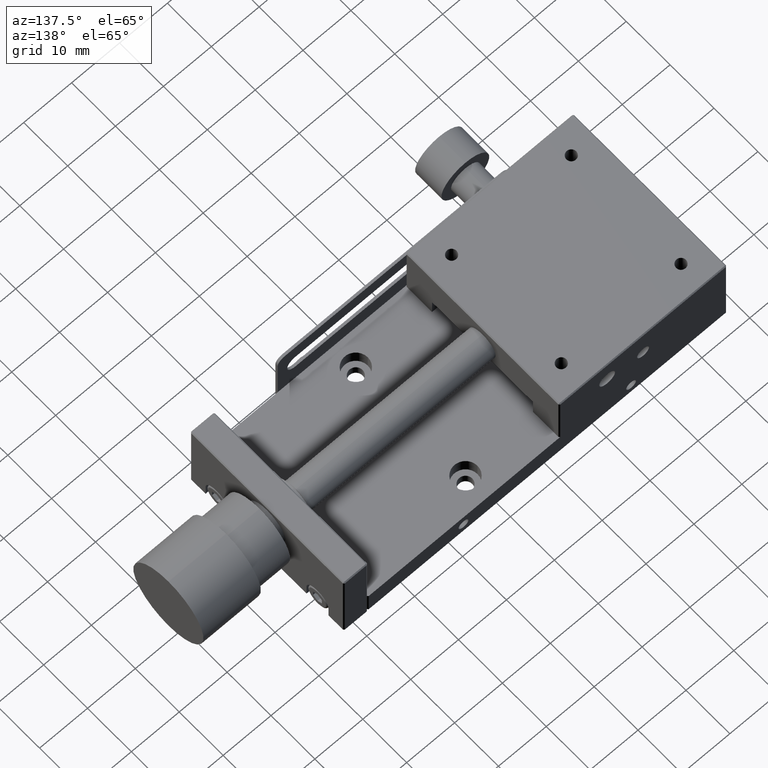
[diagram: clean part render]
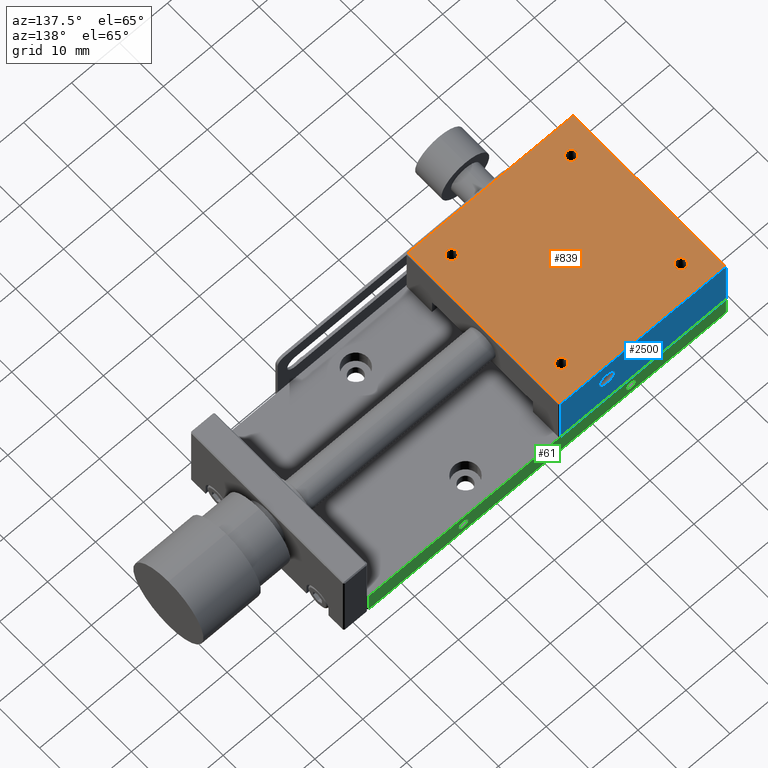
[diagram: same view with three faces highlighted in distinct colors, each labeled with its STEP entity id]
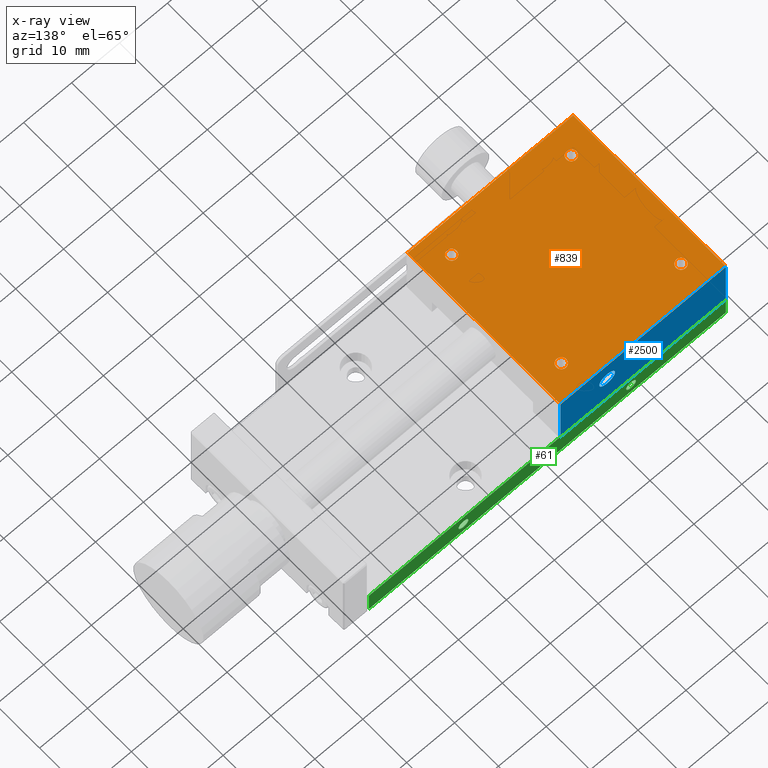
[diagram: x-ray of the same camera — body ghosted, the three highlighted faces saturated]
A machine part, auxiliary view with three faces highlighted in distinct colors.
The next image is the same camera in x-ray (body ghosted, the three faces saturated) — at least one of them is partly hidden behind the body in this view.
Their STEP definitions:

[orange] entity #839 — the highlighted planar face has unit normal (0, 0, -1).
#39 = VERTEX_POINT ( 'NONE', #10684 ) ;
#43 = CARTESIAN_POINT ( 'NONE',  ( -33.52500000000000600, 12.50000000000000000, 17.00000000000000000 ) ) ;
#44 = ORIENTED_EDGE ( 'NONE', *, *, #9098, .T. ) ;
#104 = DIRECTION ( 'NONE',  ( 1.000000000000000000, 0.0000000000000000000, 0.0000000000000000000 ) ) ;
#105 = EDGE_CURVE ( 'NONE', #3207, #4197, #10710, .T. ) ;
#245 = VECTOR ( 'NONE', #4122, 1000.000000000000000 ) ;
#258 = CIRCLE ( 'NONE', #4759, 1.024999999999999000 ) ;
#407 = CARTESIAN_POINT ( 'NONE',  ( -2.699999999962800600, -17.29999999997519900, 16.99999999997520200 ) ) ;
#465 = DIRECTION ( 'NONE',  ( 1.000000000000000000, 0.0000000000000000000, 0.0000000000000000000 ) ) ;
#702 = VERTEX_POINT ( 'NONE', #7912 ) ;
#812 = DIRECTION ( 'NONE',  ( 0.0000000000000000000, 0.0000000000000000000, -1.000000000000000000 ) ) ;
#839 = ADVANCED_FACE ( 'NONE', ( #5214, #4692, #9295, #2403, #6986 ), #5443, .F. ) ;
#955 = DIRECTION ( 'NONE',  ( 1.000000000000000000, 0.0000000000000000000, 0.0000000000000000000 ) ) ;
#984 = CARTESIAN_POINT ( 'NONE',  ( -7.500000000000000000, -12.50000000000000000, 17.00000000000000000 ) ) ;
#1103 = ORIENTED_EDGE ( 'NONE', *, *, #105, .F. ) ;
#1456 = VECTOR ( 'NONE', #8667, 1000.000000000000000 ) ;
#1596 = CARTESIAN_POINT ( 'NONE',  ( -32.50000000000000000, 12.50000000000000000, 17.00000000000000000 ) ) ;
#1675 = DIRECTION ( 'NONE',  ( 1.000000000000000000, 0.0000000000000000000, 0.0000000000000000000 ) ) ;
#1771 = EDGE_CURVE ( 'NONE', #39, #2007, #6206, .T. ) ;
#1888 = CARTESIAN_POINT ( 'NONE',  ( -2.700000000000000200, -17.30000000000000100, 17.00000000000000000 ) ) ;
#1923 = EDGE_LOOP ( 'NONE', ( #8281, #44, #7017, #2214 ) ) ;
#2007 = VERTEX_POINT ( 'NONE', #9077 ) ;
#2055 = EDGE_CURVE ( 'NONE', #2007, #39, #3653, .T. ) ;
#2163 = EDGE_LOOP ( 'NONE', ( #2681, #9966 ) ) ;
#2214 = ORIENTED_EDGE ( 'NONE', *, *, #7979, .T. ) ;
#2324 = AXIS2_PLACEMENT_3D ( 'NONE', #10632, #8962, #2841 ) ;
#2346 = EDGE_LOOP ( 'NONE', ( #3106, #9041 ) ) ;
#2403 = FACE_BOUND ( 'NONE', #2163, .T. ) ;
#2445 = DIRECTION ( 'NONE',  ( 0.0000000000000000000, -0.0000000000000000000, 1.000000000000000000 ) ) ;
#2462 = DIRECTION ( 'NONE',  ( 1.000000000000000000, 0.0000000000000000000, 0.0000000000000000000 ) ) ;
#2643 = CARTESIAN_POINT ( 'NONE',  ( -20.00000000000000000, 17.30000000000000100, 17.00000000000000000 ) ) ;
#2681 = ORIENTED_EDGE ( 'NONE', *, *, #2864, .F. ) ;
#2841 = DIRECTION ( 'NONE',  ( 1.000000000000000000, 0.0000000000000000000, 0.0000000000000000000 ) ) ;
#2864 = EDGE_CURVE ( 'NONE', #10460, #8639, #8587, .T. ) ;
#2918 = CARTESIAN_POINT ( 'NONE',  ( -2.699999999962800600, 17.29999999997519900, 16.99999999997520200 ) ) ;
#3023 = CARTESIAN_POINT ( 'NONE',  ( -37.30000000003720800, -17.29999999997519900, 16.99999999997520200 ) ) ;
#3068 = EDGE_CURVE ( 'NONE', #3648, #7547, #6788, .T. ) ;
#3106 = ORIENTED_EDGE ( 'NONE', *, *, #2055, .F. ) ;
#3207 = VERTEX_POINT ( 'NONE', #3694 ) ;
#3302 = DIRECTION ( 'NONE',  ( 1.000000000000000000, 0.0000000000000000000, 0.0000000000000000000 ) ) ;
#3315 = CARTESIAN_POINT ( 'NONE',  ( -7.500000000000000000, 12.50000000000000000, 17.00000000000000000 ) ) ;
#3328 = DIRECTION ( 'NONE',  ( 0.0000000000000000000, -0.0000000000000000000, 1.000000000000000000 ) ) ;
#3405 = DIRECTION ( 'NONE',  ( 0.0000000000000000000, -1.000000000000000000, 0.0000000000000000000 ) ) ;
#3648 = VERTEX_POINT ( 'NONE', #407 ) ;
#3650 = CARTESIAN_POINT ( 'NONE',  ( -37.30000000000620000, 17.29999999999999700, 16.99999999999380100 ) ) ;
#3653 = CIRCLE ( 'NONE', #2324, 1.024999999999999000 ) ;
#3694 = CARTESIAN_POINT ( 'NONE',  ( -31.47499999999999400, -12.50000000000000000, 17.00000000000000000 ) ) ;
#3799 = EDGE_CURVE ( 'NONE', #8533, #702, #258, .T. ) ;
#4022 = CARTESIAN_POINT ( 'NONE',  ( -8.524999999999998600, -12.50000000000000000, 17.00000000000000000 ) ) ;
#4057 = DIRECTION ( 'NONE',  ( -1.000000000000000000, 0.0000000000000000000, 0.0000000000000000000 ) ) ;
#4122 = DIRECTION ( 'NONE',  ( -1.000000000000000000, 0.0000000000000000000, 0.0000000000000000000 ) ) ;
#4197 = VERTEX_POINT ( 'NONE', #9925 ) ;
#4267 = CARTESIAN_POINT ( 'NONE',  ( -32.50000000000000000, 12.50000000000000000, 17.00000000000000000 ) ) ;
#4459 = VECTOR ( 'NONE', #6804, 1000.000000000000000 ) ;
#4692 = FACE_BOUND ( 'NONE', #8797, .T. ) ;
#4694 = VERTEX_POINT ( 'NONE', #2918 ) ;
#4759 = AXIS2_PLACEMENT_3D ( 'NONE', #984, #6055, #104 ) ;
#5070 = CIRCLE ( 'NONE', #10116, 1.025000000000005000 ) ;
#5214 = FACE_BOUND ( 'NONE', #6010, .T. ) ;
#5443 = PLANE ( 'NONE',  #8483 ) ;
#5540 = DIRECTION ( 'NONE',  ( 0.0000000000000000000, -0.0000000000000000000, 1.000000000000000000 ) ) ;
#5717 = AXIS2_PLACEMENT_3D ( 'NONE', #10675, #5540, #465 ) ;
#5915 = CARTESIAN_POINT ( 'NONE',  ( -2.700000000000000200, 0.0000000000000000000, 17.00000000000000000 ) ) ;
#6010 = EDGE_LOOP ( 'NONE', ( #9564, #8752 ) ) ;
#6055 = DIRECTION ( 'NONE',  ( 0.0000000000000000000, -0.0000000000000000000, 1.000000000000000000 ) ) ;
#6206 = CIRCLE ( 'NONE', #7703, 1.024999999999999000 ) ;
#6211 = AXIS2_PLACEMENT_3D ( 'NONE', #4267, #8602, #1675 ) ;
#6696 = CARTESIAN_POINT ( 'NONE',  ( -31.47499999999999400, 12.50000000000000000, 17.00000000000000000 ) ) ;
#6788 = LINE ( 'NONE', #7634, #245 ) ;
#6804 = DIRECTION ( 'NONE',  ( 0.0000000000000000000, 1.000000000000000000, 0.0000000000000000000 ) ) ;
#6851 = CIRCLE ( 'NONE', #5717, 1.024999999999999000 ) ;
#6986 = FACE_OUTER_BOUND ( 'NONE', #1923, .T. ) ;
#7017 = ORIENTED_EDGE ( 'NONE', *, *, #7255, .F. ) ;
#7033 = DIRECTION ( 'NONE',  ( 0.0000000000000000000, -0.0000000000000000000, 1.000000000000000000 ) ) ;
#7255 = EDGE_CURVE ( 'NONE', #9712, #4694, #8060, .T. ) ;
#7341 = LINE ( 'NONE', #7733, #9354 ) ;
#7547 = VERTEX_POINT ( 'NONE', #3023 ) ;
#7613 = AXIS2_PLACEMENT_3D ( 'NONE', #9866, #7033, #3302 ) ;
#7634 = CARTESIAN_POINT ( 'NONE',  ( -20.00000000000000000, -17.30000000000000100, 17.00000000000000000 ) ) ;
#7655 = DIRECTION ( 'NONE',  ( 0.0000000000000000000, -0.0000000000000000000, 1.000000000000000000 ) ) ;
#7703 = AXIS2_PLACEMENT_3D ( 'NONE', #3315, #2445, #955 ) ;
#7733 = CARTESIAN_POINT ( 'NONE',  ( -37.29999999999999700, 0.0000000000000000000, 17.00000000000000000 ) ) ;
#7912 = CARTESIAN_POINT ( 'NONE',  ( -6.475000000000000500, -12.50000000000000000, 17.00000000000000000 ) ) ;
#7914 = EDGE_CURVE ( 'NONE', #4197, #3207, #10385, .T. ) ;
#7979 = EDGE_CURVE ( 'NONE', #9712, #7547, #7341, .T. ) ;
#8060 = LINE ( 'NONE', #2643, #1456 ) ;
#8281 = ORIENTED_EDGE ( 'NONE', *, *, #3068, .F. ) ;
#8483 = AXIS2_PLACEMENT_3D ( 'NONE', #1888, #812, #4057 ) ;
#8514 = CARTESIAN_POINT ( 'NONE',  ( -32.50000000000000000, -12.50000000000000000, 17.00000000000000000 ) ) ;
#8533 = VERTEX_POINT ( 'NONE', #4022 ) ;
#8587 = CIRCLE ( 'NONE', #6211, 1.025000000000005000 ) ;
#8602 = DIRECTION ( 'NONE',  ( 0.0000000000000000000, -0.0000000000000000000, 1.000000000000000000 ) ) ;
#8639 = VERTEX_POINT ( 'NONE', #43 ) ;
#8667 = DIRECTION ( 'NONE',  ( 1.000000000000000000, -0.0000000000000000000, -0.0000000000000000000 ) ) ;
#8752 = ORIENTED_EDGE ( 'NONE', *, *, #3799, .F. ) ;
#8793 = AXIS2_PLACEMENT_3D ( 'NONE', #8514, #3328, #9365 ) ;
#8797 = EDGE_LOOP ( 'NONE', ( #1103, #9856 ) ) ;
#8962 = DIRECTION ( 'NONE',  ( 0.0000000000000000000, -0.0000000000000000000, 1.000000000000000000 ) ) ;
#9041 = ORIENTED_EDGE ( 'NONE', *, *, #1771, .F. ) ;
#9077 = CARTESIAN_POINT ( 'NONE',  ( -6.475000000000000500, 12.50000000000000000, 17.00000000000000000 ) ) ;
#9081 = LINE ( 'NONE', #5915, #4459 ) ;
#9098 = EDGE_CURVE ( 'NONE', #3648, #4694, #9081, .T. ) ;
#9295 = FACE_BOUND ( 'NONE', #2346, .T. ) ;
#9354 = VECTOR ( 'NONE', #3405, 1000.000000000000000 ) ;
#9365 = DIRECTION ( 'NONE',  ( 1.000000000000000000, 0.0000000000000000000, 0.0000000000000000000 ) ) ;
#9564 = ORIENTED_EDGE ( 'NONE', *, *, #9793, .F. ) ;
#9712 = VERTEX_POINT ( 'NONE', #3650 ) ;
#9793 = EDGE_CURVE ( 'NONE', #702, #8533, #6851, .T. ) ;
#9856 = ORIENTED_EDGE ( 'NONE', *, *, #7914, .F. ) ;
#9866 = CARTESIAN_POINT ( 'NONE',  ( -32.50000000000000000, -12.50000000000000000, 17.00000000000000000 ) ) ;
#9925 = CARTESIAN_POINT ( 'NONE',  ( -33.52500000000000600, -12.50000000000000000, 17.00000000000000000 ) ) ;
#9966 = ORIENTED_EDGE ( 'NONE', *, *, #10057, .F. ) ;
#10057 = EDGE_CURVE ( 'NONE', #8639, #10460, #5070, .T. ) ;
#10116 = AXIS2_PLACEMENT_3D ( 'NONE', #1596, #7655, #2462 ) ;
#10385 = CIRCLE ( 'NONE', #8793, 1.025000000000005000 ) ;
#10460 = VERTEX_POINT ( 'NONE', #6696 ) ;
#10632 = CARTESIAN_POINT ( 'NONE',  ( -7.500000000000000000, 12.50000000000000000, 17.00000000000000000 ) ) ;
#10675 = CARTESIAN_POINT ( 'NONE',  ( -7.500000000000000000, -12.50000000000000000, 17.00000000000000000 ) ) ;
#10684 = CARTESIAN_POINT ( 'NONE',  ( -8.524999999999998600, 12.50000000000000000, 17.00000000000000000 ) ) ;
#10710 = CIRCLE ( 'NONE', #7613, 1.025000000000005000 ) ;

[blue] entity #2500 — the highlighted planar face has unit normal (0, -1, 0).
#49 = ORIENTED_EDGE ( 'NONE', *, *, #9802, .F. ) ;
#313 = VECTOR ( 'NONE', #7966, 1000.000000000000000 ) ;
#594 = AXIS2_PLACEMENT_3D ( 'NONE', #4482, #3925, #6346 ) ;
#763 = EDGE_CURVE ( 'NONE', #7137, #3680, #7424, .T. ) ;
#861 = CARTESIAN_POINT ( 'NONE',  ( -37.30000000000362100, 17.49999999997862700, 16.80000000001775400 ) ) ;
#1143 = CARTESIAN_POINT ( 'NONE',  ( -37.29999999999999700, 17.50000000000000000, 10.90000000000000200 ) ) ;
#1207 = PLANE ( 'NONE',  #3213 ) ;
#1278 = EDGE_LOOP ( 'NONE', ( #6979, #8628 ) ) ;
#1451 = EDGE_CURVE ( 'NONE', #7423, #3680, #2611, .T. ) ;
#1480 = CIRCLE ( 'NONE', #10326, 1.250000000000001100 ) ;
#1575 = LINE ( 'NONE', #7570, #5848 ) ;
#1852 = EDGE_CURVE ( 'NONE', #8362, #3365, #3408, .T. ) ;
#2202 = ORIENTED_EDGE ( 'NONE', *, *, #5139, .T. ) ;
#2500 = ADVANCED_FACE ( 'NONE', ( #2536, #9176, #4559 ), #1207, .F. ) ;
#2536 = FACE_BOUND ( 'NONE', #1278, .T. ) ;
#2611 = LINE ( 'NONE', #2660, #4635 ) ;
#2660 = CARTESIAN_POINT ( 'NONE',  ( -20.00000000000000000, 17.50000000000000000, 5.000000000000000000 ) ) ;
#3081 = CARTESIAN_POINT ( 'NONE',  ( -20.00000000000000000, 17.50000000000000000, 10.80000000000000100 ) ) ;
#3213 = AXIS2_PLACEMENT_3D ( 'NONE', #10569, #3719, #8902 ) ;
#3326 = CARTESIAN_POINT ( 'NONE',  ( -2.699999999978251400, 17.49999999998549800, 16.79999999998549900 ) ) ;
#3365 = VERTEX_POINT ( 'NONE', #3400 ) ;
#3400 = CARTESIAN_POINT ( 'NONE',  ( -12.50000000000000000, 17.50000000000000000, 10.35000000000000000 ) ) ;
#3408 = CIRCLE ( 'NONE', #594, 1.650000000000000400 ) ;
#3665 = CARTESIAN_POINT ( 'NONE',  ( -37.29999999750000200, 17.50000000000000000, 4.999999999999999100 ) ) ;
#3680 = VERTEX_POINT ( 'NONE', #5418 ) ;
#3719 = DIRECTION ( 'NONE',  ( 0.0000000000000000000, -1.000000000000000000, 0.0000000000000000000 ) ) ;
#3853 = CARTESIAN_POINT ( 'NONE',  ( -12.50000000000000000, 17.50000000000000000, 12.00000000000000000 ) ) ;
#3892 = VERTEX_POINT ( 'NONE', #6827 ) ;
#3925 = DIRECTION ( 'NONE',  ( -0.0000000000000000000, 1.000000000000000000, 0.0000000000000000000 ) ) ;
#3935 = DIRECTION ( 'NONE',  ( 0.0000000000000000000, 0.0000000000000000000, 1.000000000000000000 ) ) ;
#4169 = CIRCLE ( 'NONE', #4422, 1.250000000000001100 ) ;
#4422 = AXIS2_PLACEMENT_3D ( 'NONE', #10212, #5052, #11064 ) ;
#4482 = CARTESIAN_POINT ( 'NONE',  ( -12.50000000000000000, 17.50000000000000000, 12.00000000000000000 ) ) ;
#4494 = ORIENTED_EDGE ( 'NONE', *, *, #7128, .F. ) ;
#4559 = FACE_OUTER_BOUND ( 'NONE', #7212, .T. ) ;
#4635 = VECTOR ( 'NONE', #5538, 1000.000000000000000 ) ;
#4734 = DIRECTION ( 'NONE',  ( 0.0000000000000000000, 0.0000000000000000000, 1.000000000000000000 ) ) ;
#5052 = DIRECTION ( 'NONE',  ( 0.0000000000000000000, 1.000000000000000000, 0.0000000000000000000 ) ) ;
#5139 = EDGE_CURVE ( 'NONE', #7423, #7172, #7078, .T. ) ;
#5418 = CARTESIAN_POINT ( 'NONE',  ( -2.700000005000001000, 17.50000000000000000, 5.000000000000000000 ) ) ;
#5538 = DIRECTION ( 'NONE',  ( 1.000000000000000000, -0.0000000000000000000, -0.0000000000000000000 ) ) ;
#5629 = ORIENTED_EDGE ( 'NONE', *, *, #763, .T. ) ;
#5848 = VECTOR ( 'NONE', #7649, 1000.000000000000000 ) ;
#6346 = DIRECTION ( 'NONE',  ( 0.0000000000000000000, 0.0000000000000000000, 1.000000000000000000 ) ) ;
#6720 = EDGE_LOOP ( 'NONE', ( #11008, #49 ) ) ;
#6800 = VECTOR ( 'NONE', #10381, 1000.000000000000000 ) ;
#6827 = CARTESIAN_POINT ( 'NONE',  ( -20.00000000000000000, 17.50000000000000000, 9.549999999999998900 ) ) ;
#6898 = AXIS2_PLACEMENT_3D ( 'NONE', #3853, #9890, #4734 ) ;
#6979 = ORIENTED_EDGE ( 'NONE', *, *, #9864, .F. ) ;
#7078 = LINE ( 'NONE', #1143, #6800 ) ;
#7128 = EDGE_CURVE ( 'NONE', #7137, #7172, #1575, .T. ) ;
#7137 = VERTEX_POINT ( 'NONE', #3326 ) ;
#7142 = CARTESIAN_POINT ( 'NONE',  ( -2.700000000000000200, 17.50000000000000000, 10.90000000000000200 ) ) ;
#7172 = VERTEX_POINT ( 'NONE', #861 ) ;
#7212 = EDGE_LOOP ( 'NONE', ( #5629, #10781, #2202, #4494 ) ) ;
#7423 = VERTEX_POINT ( 'NONE', #3665 ) ;
#7424 = LINE ( 'NONE', #7142, #313 ) ;
#7570 = CARTESIAN_POINT ( 'NONE',  ( -20.00000000000000000, 17.50000000000000000, 16.80000000000000100 ) ) ;
#7649 = DIRECTION ( 'NONE',  ( -1.000000000000000000, -0.0000000000000000000, -0.0000000000000000000 ) ) ;
#7966 = DIRECTION ( 'NONE',  ( 0.0000000000000000000, 0.0000000000000000000, -1.000000000000000000 ) ) ;
#8235 = VERTEX_POINT ( 'NONE', #9762 ) ;
#8362 = VERTEX_POINT ( 'NONE', #8992 ) ;
#8628 = ORIENTED_EDGE ( 'NONE', *, *, #9485, .F. ) ;
#8902 = DIRECTION ( 'NONE',  ( 0.0000000000000000000, 0.0000000000000000000, -1.000000000000000000 ) ) ;
#8992 = CARTESIAN_POINT ( 'NONE',  ( -12.50000000000000000, 17.50000000000000000, 13.65000000000000000 ) ) ;
#9131 = DIRECTION ( 'NONE',  ( 0.0000000000000000000, 1.000000000000000000, 0.0000000000000000000 ) ) ;
#9176 = FACE_BOUND ( 'NONE', #6720, .T. ) ;
#9178 = CIRCLE ( 'NONE', #6898, 1.650000000000000400 ) ;
#9485 = EDGE_CURVE ( 'NONE', #3892, #8235, #4169, .T. ) ;
#9762 = CARTESIAN_POINT ( 'NONE',  ( -20.00000000000000000, 17.50000000000000000, 12.05000000000000200 ) ) ;
#9802 = EDGE_CURVE ( 'NONE', #3365, #8362, #9178, .T. ) ;
#9864 = EDGE_CURVE ( 'NONE', #8235, #3892, #1480, .T. ) ;
#9890 = DIRECTION ( 'NONE',  ( -0.0000000000000000000, 1.000000000000000000, 0.0000000000000000000 ) ) ;
#10212 = CARTESIAN_POINT ( 'NONE',  ( -20.00000000000000000, 17.50000000000000000, 10.80000000000000100 ) ) ;
#10326 = AXIS2_PLACEMENT_3D ( 'NONE', #3081, #9131, #3935 ) ;
#10381 = DIRECTION ( 'NONE',  ( -0.0000000000000000000, -0.0000000000000000000, 1.000000000000000000 ) ) ;
#10569 = CARTESIAN_POINT ( 'NONE',  ( -37.29999999999999700, 17.50000000000000000, 16.80000000000000100 ) ) ;
#10781 = ORIENTED_EDGE ( 'NONE', *, *, #1451, .F. ) ;
#11008 = ORIENTED_EDGE ( 'NONE', *, *, #1852, .F. ) ;
#11064 = DIRECTION ( 'NONE',  ( 0.0000000000000000000, 0.0000000000000000000, 1.000000000000000000 ) ) ;

[green] entity #61 — the highlighted planar face has unit normal (0, -1, 0).
#60 = VERTEX_POINT ( 'NONE', #8132 ) ;
#61 = ADVANCED_FACE ( 'NONE', ( #6419, #1866, #10991 ), #8873, .F. ) ;
#122 = DIRECTION ( 'NONE',  ( 0.0000000000000000000, 1.000000000000000000, 0.0000000000000000000 ) ) ;
#152 = AXIS2_PLACEMENT_3D ( 'NONE', #1500, #7522, #2336 ) ;
#318 = EDGE_CURVE ( 'NONE', #10202, #1552, #4173, .T. ) ;
#541 = EDGE_CURVE ( 'NONE', #60, #2532, #10869, .T. ) ;
#890 = CARTESIAN_POINT ( 'NONE',  ( -37.29999999999999700, 17.50000000000000000, 2.600000000000000100 ) ) ;
#931 = DIRECTION ( 'NONE',  ( 1.000000000000000000, 0.0000000000000000000, 0.0000000000000000000 ) ) ;
#1109 = VERTEX_POINT ( 'NONE', #6639 ) ;
#1251 = VERTEX_POINT ( 'NONE', #5873 ) ;
#1414 = AXIS2_PLACEMENT_3D ( 'NONE', #9688, #122, #5468 ) ;
#1432 = EDGE_CURVE ( 'NONE', #1552, #10202, #1672, .T. ) ;
#1500 = CARTESIAN_POINT ( 'NONE',  ( 17.50000000000000000, 17.50000000000000000, 2.500000000000000000 ) ) ;
#1552 = VERTEX_POINT ( 'NONE', #3972 ) ;
#1672 = CIRCLE ( 'NONE', #5978, 1.024999999999999900 ) ;
#1778 = ORIENTED_EDGE ( 'NONE', *, *, #7738, .F. ) ;
#1866 = FACE_BOUND ( 'NONE', #2509, .T. ) ;
#2132 = EDGE_CURVE ( 'NONE', #1109, #5192, #3388, .T. ) ;
#2211 = DIRECTION ( 'NONE',  ( 1.000000000000000000, -0.0000000000000000000, -0.0000000000000000000 ) ) ;
#2336 = DIRECTION ( 'NONE',  ( 0.0000000000000000000, 0.0000000000000000000, 1.000000000000000000 ) ) ;
#2509 = EDGE_LOOP ( 'NONE', ( #6459, #5674 ) ) ;
#2532 = VERTEX_POINT ( 'NONE', #8945 ) ;
#2645 = EDGE_CURVE ( 'NONE', #5478, #60, #5069, .T. ) ;
#2792 = DIRECTION ( 'NONE',  ( 0.0000000000000000000, 0.0000000000000000000, -1.000000000000000000 ) ) ;
#3057 = CARTESIAN_POINT ( 'NONE',  ( 37.29999999999999700, 17.50000000000000000, 2.600000000000000100 ) ) ;
#3175 = VECTOR ( 'NONE', #6843, 1000.000000000000000 ) ;
#3200 = LINE ( 'NONE', #3439, #9799 ) ;
#3388 = CIRCLE ( 'NONE', #6347, 1.024999999999999900 ) ;
#3439 = CARTESIAN_POINT ( 'NONE',  ( -0.3243999999999990200, 17.50000000000000000, 0.2000000000000000100 ) ) ;
#3638 = ORIENTED_EDGE ( 'NONE', *, *, #541, .T. ) ;
#3972 = CARTESIAN_POINT ( 'NONE',  ( -17.50000000000000000, 17.50000000000000000, 1.475000000000000100 ) ) ;
#4173 = CIRCLE ( 'NONE', #1414, 1.024999999999999900 ) ;
#4226 = CARTESIAN_POINT ( 'NONE',  ( -37.29999999374999900, 17.50000000000000000, 5.000000000000000900 ) ) ;
#4407 = CARTESIAN_POINT ( 'NONE',  ( -17.50000000000000000, 17.50000000000000000, 3.524999999999999900 ) ) ;
#4581 = ORIENTED_EDGE ( 'NONE', *, *, #2645, .T. ) ;
#4761 = DIRECTION ( 'NONE',  ( 0.0000000000000000000, 0.0000000000000000000, -1.000000000000000000 ) ) ;
#4812 = VECTOR ( 'NONE', #2211, 1000.000000000000000 ) ;
#5069 = LINE ( 'NONE', #7381, #4812 ) ;
#5115 = DIRECTION ( 'NONE',  ( 0.0000000000000000000, -1.000000000000000000, 0.0000000000000000000 ) ) ;
#5143 = ORIENTED_EDGE ( 'NONE', *, *, #10400, .F. ) ;
#5155 = LINE ( 'NONE', #890, #3175 ) ;
#5192 = VERTEX_POINT ( 'NONE', #10415 ) ;
#5350 = DIRECTION ( 'NONE',  ( 0.0000000000000000000, 0.0000000000000000000, 1.000000000000000000 ) ) ;
#5468 = DIRECTION ( 'NONE',  ( 0.0000000000000000000, 0.0000000000000000000, 1.000000000000000000 ) ) ;
#5478 = VERTEX_POINT ( 'NONE', #4226 ) ;
#5674 = ORIENTED_EDGE ( 'NONE', *, *, #1432, .F. ) ;
#5873 = CARTESIAN_POINT ( 'NONE',  ( -37.29999999984499900, 17.50000000000000000, 0.2000000000000000900 ) ) ;
#5978 = AXIS2_PLACEMENT_3D ( 'NONE', #6123, #10411, #6052 ) ;
#6052 = DIRECTION ( 'NONE',  ( 0.0000000000000000000, 0.0000000000000000000, 1.000000000000000000 ) ) ;
#6123 = CARTESIAN_POINT ( 'NONE',  ( -17.50000000000000000, 17.50000000000000000, 2.500000000000000000 ) ) ;
#6226 = CARTESIAN_POINT ( 'NONE',  ( -37.29999999999999700, 17.50000000000000000, 5.000000000000000000 ) ) ;
#6298 = ORIENTED_EDGE ( 'NONE', *, *, #10630, .F. ) ;
#6347 = AXIS2_PLACEMENT_3D ( 'NONE', #8815, #8606, #5350 ) ;
#6402 = AXIS2_PLACEMENT_3D ( 'NONE', #6226, #5115, #2792 ) ;
#6419 = FACE_BOUND ( 'NONE', #8242, .T. ) ;
#6459 = ORIENTED_EDGE ( 'NONE', *, *, #318, .F. ) ;
#6639 = CARTESIAN_POINT ( 'NONE',  ( 17.50000000000000000, 17.50000000000000000, 1.475000000000000100 ) ) ;
#6843 = DIRECTION ( 'NONE',  ( 0.0000000000000000000, 0.0000000000000000000, -1.000000000000000000 ) ) ;
#7311 = ORIENTED_EDGE ( 'NONE', *, *, #2132, .F. ) ;
#7381 = CARTESIAN_POINT ( 'NONE',  ( 0.0000000000000000000, 17.50000000000000000, 5.000000000000000000 ) ) ;
#7522 = DIRECTION ( 'NONE',  ( 0.0000000000000000000, 1.000000000000000000, 0.0000000000000000000 ) ) ;
#7738 = EDGE_CURVE ( 'NONE', #5478, #1251, #5155, .T. ) ;
#8132 = CARTESIAN_POINT ( 'NONE',  ( 37.29999999374999900, 17.50000000000000000, 5.000000000000000900 ) ) ;
#8242 = EDGE_LOOP ( 'NONE', ( #5143, #7311 ) ) ;
#8606 = DIRECTION ( 'NONE',  ( 0.0000000000000000000, 1.000000000000000000, 0.0000000000000000000 ) ) ;
#8815 = CARTESIAN_POINT ( 'NONE',  ( 17.50000000000000000, 17.50000000000000000, 2.500000000000000000 ) ) ;
#8873 = PLANE ( 'NONE',  #6402 ) ;
#8945 = CARTESIAN_POINT ( 'NONE',  ( 37.29999999998548800, 17.49999999998550500, 0.1999999999782509900 ) ) ;
#9688 = CARTESIAN_POINT ( 'NONE',  ( -17.50000000000000000, 17.50000000000000000, 2.500000000000000000 ) ) ;
#9799 = VECTOR ( 'NONE', #931, 1000.000000000000000 ) ;
#10202 = VERTEX_POINT ( 'NONE', #4407 ) ;
#10400 = EDGE_CURVE ( 'NONE', #5192, #1109, #10698, .T. ) ;
#10411 = DIRECTION ( 'NONE',  ( 0.0000000000000000000, 1.000000000000000000, 0.0000000000000000000 ) ) ;
#10415 = CARTESIAN_POINT ( 'NONE',  ( 17.50000000000000000, 17.50000000000000000, 3.524999999999999900 ) ) ;
#10585 = EDGE_LOOP ( 'NONE', ( #4581, #3638, #6298, #1778 ) ) ;
#10606 = VECTOR ( 'NONE', #4761, 1000.000000000000000 ) ;
#10630 = EDGE_CURVE ( 'NONE', #1251, #2532, #3200, .T. ) ;
#10698 = CIRCLE ( 'NONE', #152, 1.024999999999999900 ) ;
#10869 = LINE ( 'NONE', #3057, #10606 ) ;
#10991 = FACE_OUTER_BOUND ( 'NONE', #10585, .T. ) ;